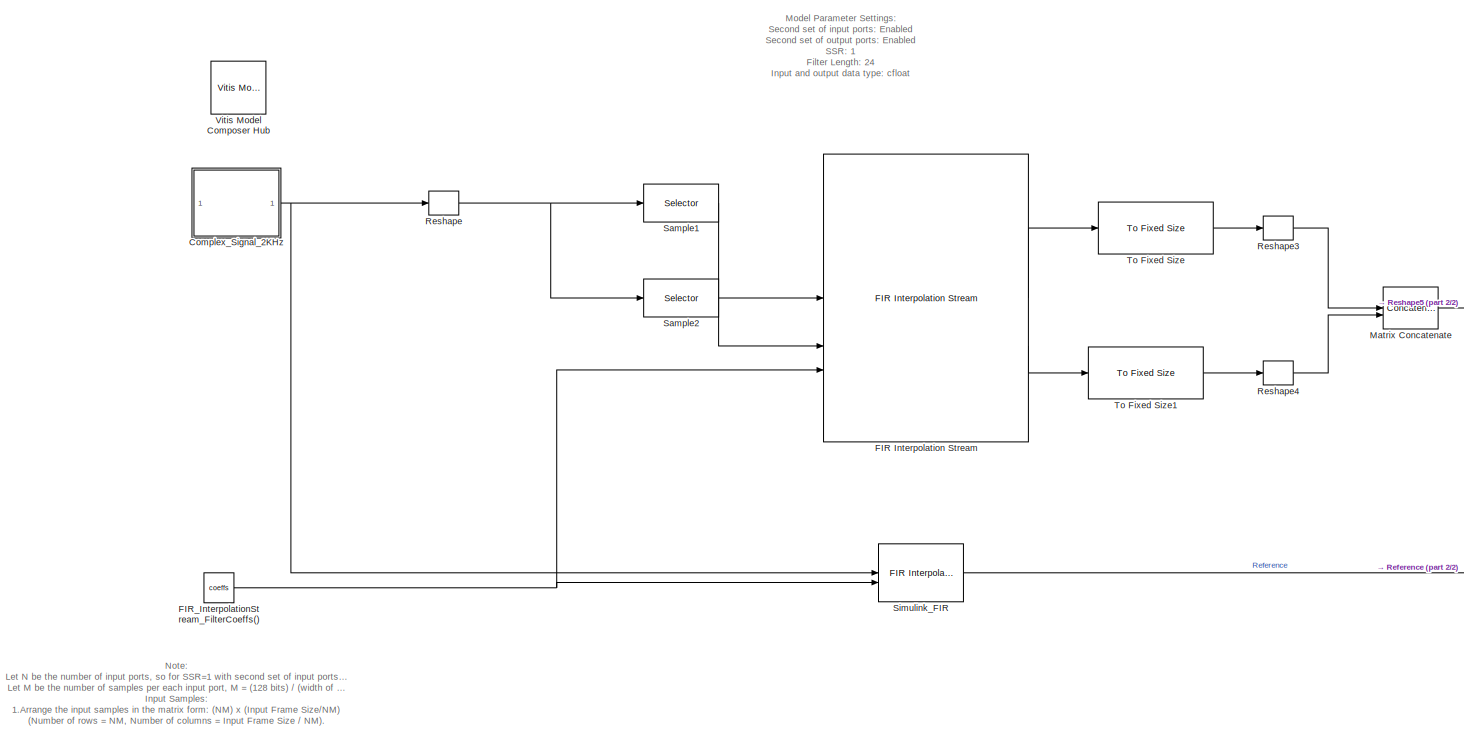
[diagram: root canvas - part 1/2, most of the canvas]
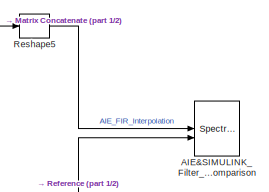
[diagram: root canvas - part 2/2, middle right region]
MODEL slx_f34b5fd5951c
KIND model
CONFIG AbsTol = auto
CONFIG EnableMultiTasking = off
CONFIG FixedStep = auto
CONFIG InitFcn = Fs = 50e3;               % Sampling Frequency\nFpass = 16000;            % Passband Frequency\nFstop = 23000;            % Stopband Frequency\nDpass = 0.00460513763;    % Passband Ripple\nDstop = 0.0001;           % Stopband Attenuation\ndens  = 16;                   % Density Factor\n% Calculate the order from the parameters using FIRPMORD.\n[N, Fo, Ao, W] = firpmord([Fpass, Fstop]/(Fs/2), [1 0], [Dpass...<+112ch>
CONFIG MaxStep = auto
CONFIG MinStep = auto
CONFIG RelTol = 1e-3
CONFIG SampleTimeConstraint = Unconstrained
CONFIG SolverName = VariableStepAuto
CONFIG StartTime = 0.0
CONFIG StopTime = 10.0
BLOCK [SpectrumAnalyzer] AIE&SIMULINK_Filter_Spectrum_Comparison
  AllowFFTLengthLessThanSamplesPerUpdate = on
  AveragingMethod = Exponential
  ChannelNames = [""]
  DefaultConfigurationName = spbscopes.SpectrumAnalyzerBlockCfg
  GraphicalSettings = {"GraphicalSettings":{"Style":{"BackgroundColor":[0.12941176470588237,0.12941176470588237,0.12941176470588237],"AxesColor":[0.070588235294117646,0.070588235294117646,0.070588235294117646],"LabelsColor":[0.85098039215686272,0.85098039215686272,0.85098039215686272],"PreserveColors":false,"Visible":[true,true],"LineStyle":["-","-"],"LineWidth":[1.5,1.5],"BarWidth":[0.9,0.9],"LineColor":[[1,0.90980392...<+205ch>
  NumInputPorts = 2
  ScopeFrameLocation = window
  ScopeSpecificationString = spbscopes.SpectrumAnalyzerBlockCfg('CurrentConfiguration', extmgr.ConfigurationSet(extmgr.Configuration('Core','General UI',true,'FigureColor',[0.16        0.16        0.16]),extmgr.Configuration('Visuals','Spectrum',true,'Title','','YLabel','','MinYLim','-74.4883','MaxYLim','34.8519','Legend',true,'AxesProperties',struct('XGrid',{'on','on'},'YGrid',{'on','on'},'ZGrid',{'on','on'},'Color',{[0 0 0]...<+2398ch>
  ShowLegend = on
  Span = 49999.99999999999
  StartFrequency = -24999.999999999996
  StopFrequency = 24999.999999999996
  Visible = on
  WasSavedAsWebScope = on
  WindowPosition = [771.000000,408.000000,800.000000,500.000000,]
  YLimits = [-85.1987 36.07]
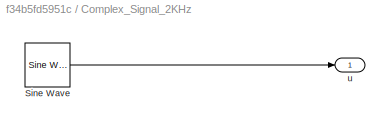
BLOCK [SubSystem] Complex_Signal_2KHz
BLOCK [Reference] Complex_Signal_2KHz/Sine Wave  REF=dspsrcs4/Sine Wave
  SourceBlock = dspsrcs4/Sine Wave
  SourceType = Sine Wave
BLOCK [Outport] Complex_Signal_2KHz/u
BLOCK [Reference] FIR Interpolation Stream  REF=aieDSP/FIR Interpolation Stream
  SourceBlock = aieDSP/FIR Interpolation Stream
  SourceType = FIR Interpolation Stream
BLOCK [Constant] FIR_InterpolationStream_FilterCoeffs()
  OutDataTypeStr = single
  Value = coeffs
BLOCK [Concatenate] Matrix Concatenate
  Mode = Multidimensional array
BLOCK [Reshape] Reshape
  OutputDimensionality = Customize
  OutputDimensions = [4,64]
BLOCK [Reshape] Reshape3
  OutputDimensionality = Customize
  OutputDimensions = [2,128]
BLOCK [Reshape] Reshape4
  OutputDimensionality = Customize
  OutputDimensions = [2,128]
BLOCK [Reshape] Reshape5
BLOCK [Selector] Sample1
  IndexOptions = Index vector (dialog),Select all
  Indices = [1 2],1
  InputPortWidth = 256
  NumberOfDimensions = 2
  OutputSizes = 1,1
BLOCK [Selector] Sample2
  IndexOptions = Index vector (dialog),Select all
  Indices = [3 4],1
  InputPortWidth = 256
  NumberOfDimensions = 2
  OutputSizes = 1,1
BLOCK [Reference] Simulink_FIR   REF=dspmlti4/FIR
Interpolation
  SourceBlock = dspmlti4/FIR\nInterpolation
  SourceType = FIR Interpolation
  UserDataPersistent = on
BLOCK [Reference] To Fixed Size  REF=aieUtilities/To Fixed Size
  SourceBlock = aieUtilities/To Fixed Size
  SourceType = To Fixed Size
BLOCK [Reference] To Fixed Size1  REF=aieUtilities/To Fixed Size
  SourceBlock = aieUtilities/To Fixed Size
  SourceType = To Fixed Size
BLOCK [Reference] Vitis Model Composer Hub  REF=vmcUtilities/Vitis Model Composer Hub
  SourceBlock = vmcUtilities/Vitis Model Composer Hub
  SourceType = VMC Hub
  Tag = genX
  UserDataPersistent = on
ANNOTATION (root): Model Parameter Settings: Second set of input ports: Enabled Second set of output ports: Enabled SSR: 1 Filter Length: 24 Input and output data type: cfloat Interpolation Factor: 2 Input frame size: 256
ANNOTATION (root): Note: Let N be the number of input ports, so for SSR=1 with second set of input ports enabled, N=2 Let M be the number of samples per each input port, M = (128 bits) / (width of input data), so M=128/64=2 for cfloat Input Samples: 1.Arrange the input samples in the matrix form: (NM) x (Input Frame Size/NM) (Number of rows = NM, Number of columns = Input Frame Size / NM). At each invocation of the ...<+503ch>
LINE Complex_Signal_2KHz/Sine Wave:1 -> Complex_Signal_2KHz/u:1
NET Complex_Signal_2KHz:1 -> Reshape:1, Simulink_FIR :1
LINE FIR Interpolation Stream:1 -> To Fixed Size:1
LINE FIR Interpolation Stream:2 -> To Fixed Size1:1
NET FIR_InterpolationStream_FilterCoeffs():1 -> FIR Interpolation Stream:3, Simulink_FIR :2
LINE Matrix Concatenate:1 -> Reshape5:1
LINE Reshape3:1 -> Matrix Concatenate:1
LINE Reshape4:1 -> Matrix Concatenate:2
LINE Reshape5:1 -> AIE&SIMULINK_Filter_Spectrum_Comparison:1
NET Reshape:1 -> Sample1:1, Sample2:1
LINE Sample1:1 -> FIR Interpolation Stream:1
LINE Sample2:1 -> FIR Interpolation Stream:2
LINE Simulink_FIR :1 -> AIE&SIMULINK_Filter_Spectrum_Comparison:2
LINE To Fixed Size1:1 -> Reshape4:1
LINE To Fixed Size:1 -> Reshape3:1
note: NET lines group one-source signal fan-out (src -> all destinations, sorted); 1:1 wires keep LINE
